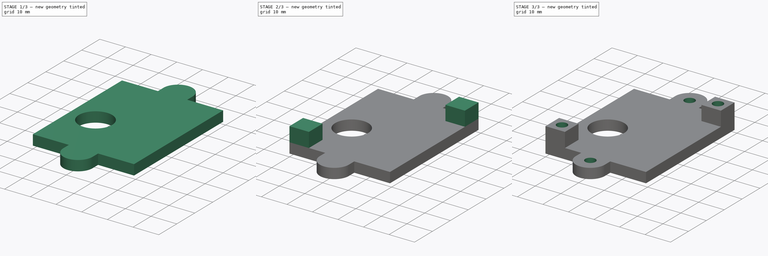
[diagram: build sequence overview — one tinted view per stage of 3, left to right]
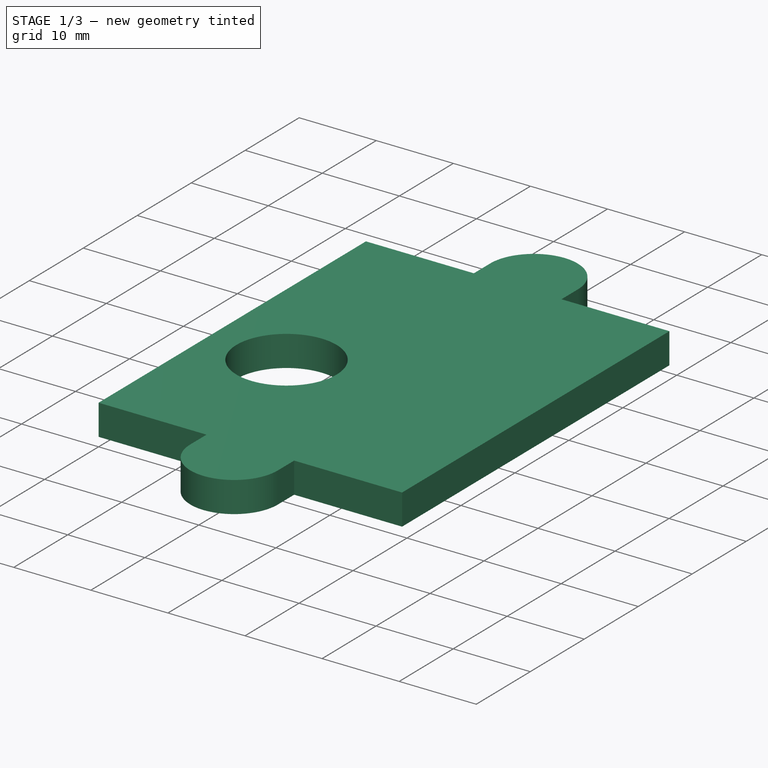
[diagram: stage 1 of 3 — iso view after this stage's code; geometry added in this stage tinted green]
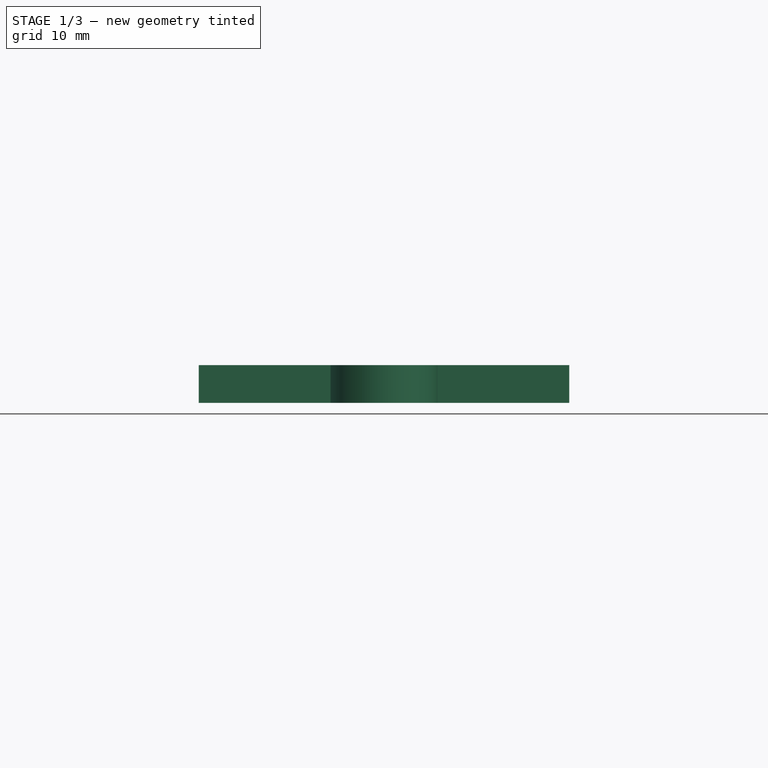
[diagram: stage 1 of 3 — front view after this stage's code; geometry added in this stage tinted green]
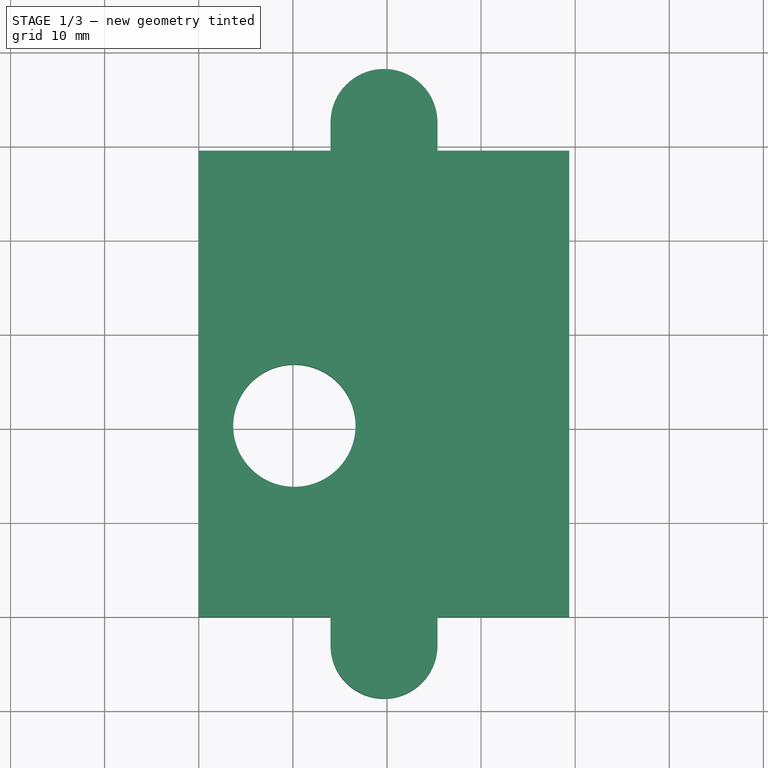
[diagram: stage 1 of 3 — top view after this stage's code; geometry added in this stage tinted green]
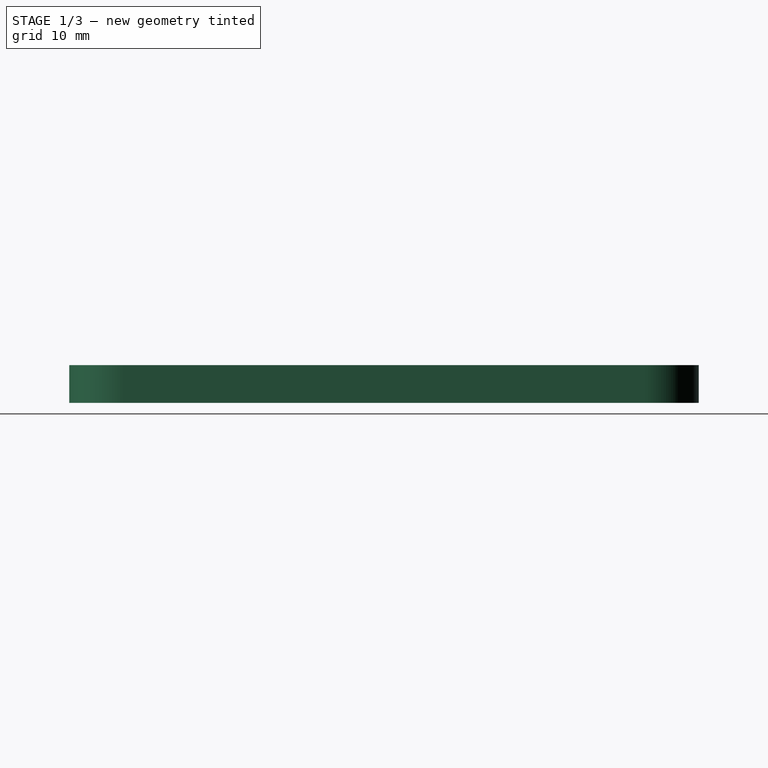
[diagram: stage 1 of 3 — right view after this stage's code; geometry added in this stage tinted green]
FCSTD DOCUMENT  (FreeCAD 0.19R)
Label: board_mount
License: All rights reserved
LicenseURL: http://en.wikipedia.org/wiki/All_rights_reserved
objects: Sketcher::SketchObject×5, PartDesign::Pocket×3, PartDesign::Pad×2, PartDesign::Body×1
note: 16 computed .brp shape members not serialized (recipe doc carries the construction recipe); baked Part::Feature solids carry a one-line shape summary decoded from their .brp

FEATURE [Sketcher::SketchObject] Sketch  label="base"
  FullyConstrained = true
  MapMode = 5
  Support = -> [XY_Plane]
  sketch-geometry (12):
    g0: LineSegment StartX=0 StartY=0 StartZ=0 EndX=0 EndY=49.53 EndZ=0
    g1: LineSegment StartX=0 StartY=49.53 StartZ=0 EndX=14 EndY=49.53 EndZ=0
    g2: LineSegment StartX=25.37 StartY=49.53 StartZ=0 EndX=39.37 EndY=49.53 EndZ=0
    g3: LineSegment StartX=39.37 StartY=49.53 StartZ=0 EndX=39.37 EndY=0 EndZ=0
    g4: LineSegment StartX=0 StartY=0 StartZ=0 EndX=14 EndY=0 EndZ=0
    g5: LineSegment StartX=39.37 StartY=0 StartZ=0 EndX=25.37 EndY=0 EndZ=0
    g6: LineSegment StartX=14 StartY=49.53 StartZ=0 EndX=14 EndY=52.53 EndZ=0
    g7: LineSegment StartX=25.37 StartY=49.53 StartZ=0 EndX=25.37 EndY=52.53 EndZ=0
    g8: LineSegment StartX=14 StartY=0 StartZ=0 EndX=14 EndY=-3 EndZ=0
    g9: LineSegment StartX=25.37 StartY=0 StartZ=0 EndX=25.37 EndY=-3 EndZ=0
    g10: ArcOfCircle CenterX=19.685 CenterY=-3.00003 CenterZ=0 NormalX=0 NormalY=0 NormalZ=1 AngleXU=0 Radius=5.685 StartAngle=3.14159 EndAngle=6.28319
    g11: ArcOfCircle CenterX=19.685 CenterY=52.53 CenterZ=0 NormalX=0 NormalY=0 NormalZ=1 AngleXU=0 Radius=5.685 StartAngle=0 EndAngle=3.14159
  constraints (37):
    c: Coincident(g0,g-1)
    c: PointOnObject(g0,g-2)
    c: Coincident(g1,g0)
    c: Horizontal(g1)
    c: Coincident(g3,g2)
    c: PointOnObject(g3,g-1)
    c: Vertical(g3)
    c: Coincident(g4,g0)
    c: PointOnObject(g4,g-1)
    c: Coincident(g5,g3)
    c: PointOnObject(g5,g-1)
    c: Coincident(g6,g1)
    c: Vertical(g6)
    c: Coincident(g7,g2)
    c: Coincident(g8,g4)
    c: Coincident(g9,g5)
    c: Coincident(g10,g8)
    c: Coincident(g10,g9)
    c: Coincident(g11,g6)
    c: Coincident(g11,g7)
    c: Horizontal(g2)
    c: Vertical(g7)
    c: DistanceY(g0,g0) = 49.53
    c: DistanceX(g0,g2) = 39.37
    c: Equal(g3,g0)
    c: Equal(g2,g5)
    c: Equal(g5,g4)
    c: Equal(g4,g1)
    c: Equal(g10,g11)
    c: Equal(g9,g8)
    c: Equal(g8,g7)
    c: Equal(g7,g6)
    c: Vertical(g8)
    c: Vertical(g9)
    c: DistanceX(g1,g1) = 14
    c: DistanceY(g8,g8) = 3
    c: Horizontal(g11,g6)
FEATURE [PartDesign::Pad] Pad
  Direction = (1,1,1)
  Length = 4
  Length2 = 100
  Profile = -> Sketch
  Type = 0
FEATURE [Sketcher::SketchObject] Sketch001  label="buzzer_hole"
  FullyConstrained = true
  MapMode = 5
  Placement = pos=(0,0,4) rot=(0,0,1;0rad)
  Support = -> [Pad]
  sketch-geometry (1):
    g0: Circle CenterX=10.16 CenterY=20.31 CenterZ=0 NormalX=0 NormalY=0 NormalZ=1 AngleXU=0 Radius=6.5
  constraints (3):
    c: Radius(g0) = 6.5
    c: DistanceX(g-1,g0) = 10.16
    c: DistanceY(g-1,g0) = 20.31
FEATURE [PartDesign::Pocket] Pocket
  BaseFeature = -> Pad
  Length = 5
  Length2 = 100
  Profile = -> Sketch001
  Type = 0
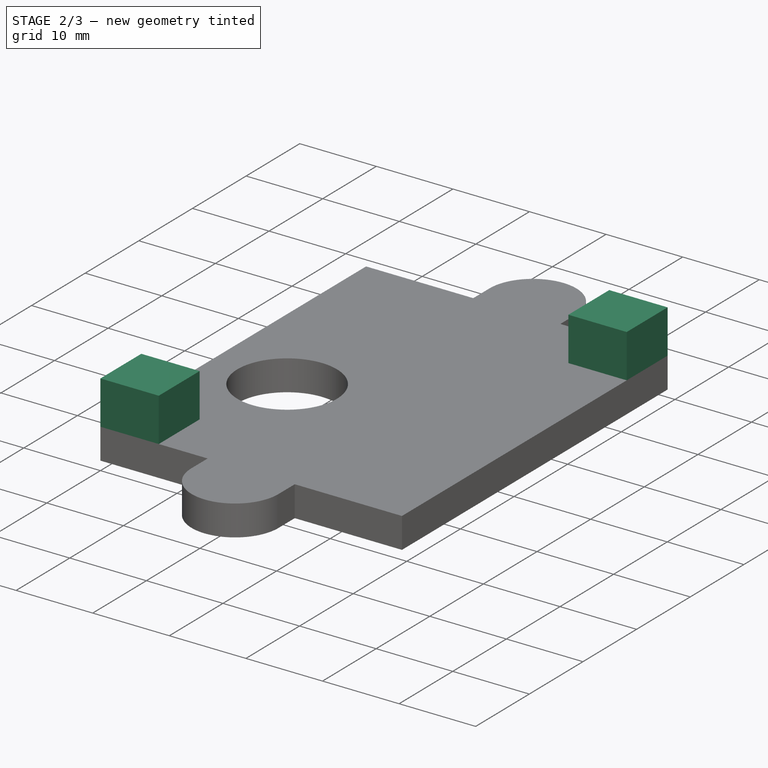
[diagram: stage 2 of 3 — iso view after this stage's code; geometry added in this stage tinted green]
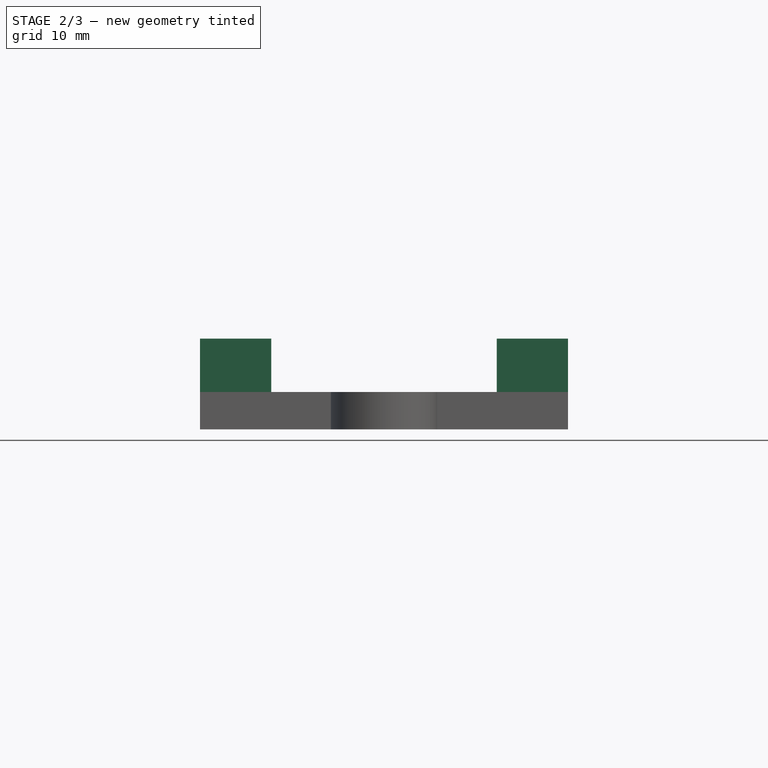
[diagram: stage 2 of 3 — front view after this stage's code; geometry added in this stage tinted green]
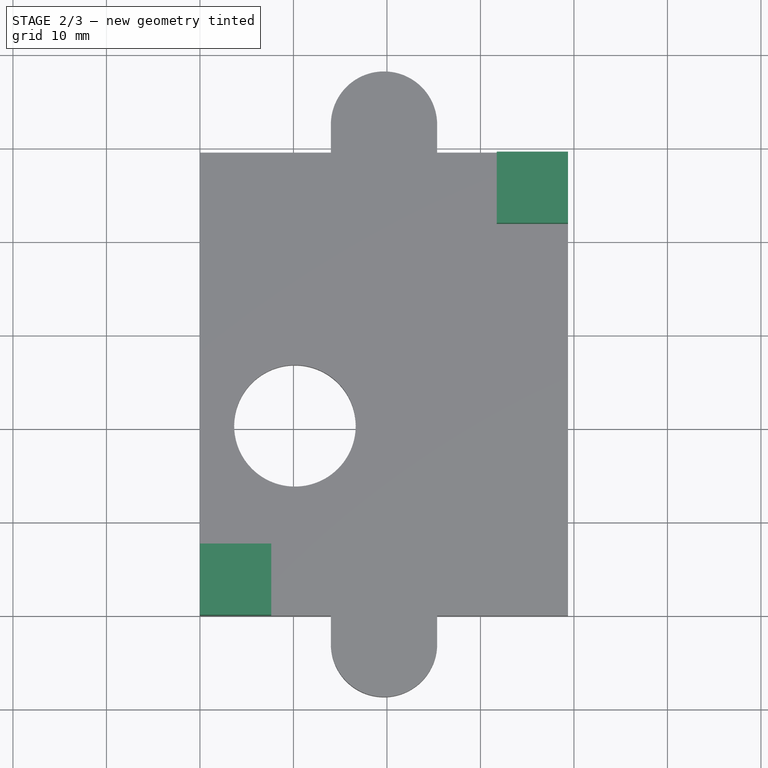
[diagram: stage 2 of 3 — top view after this stage's code; geometry added in this stage tinted green]
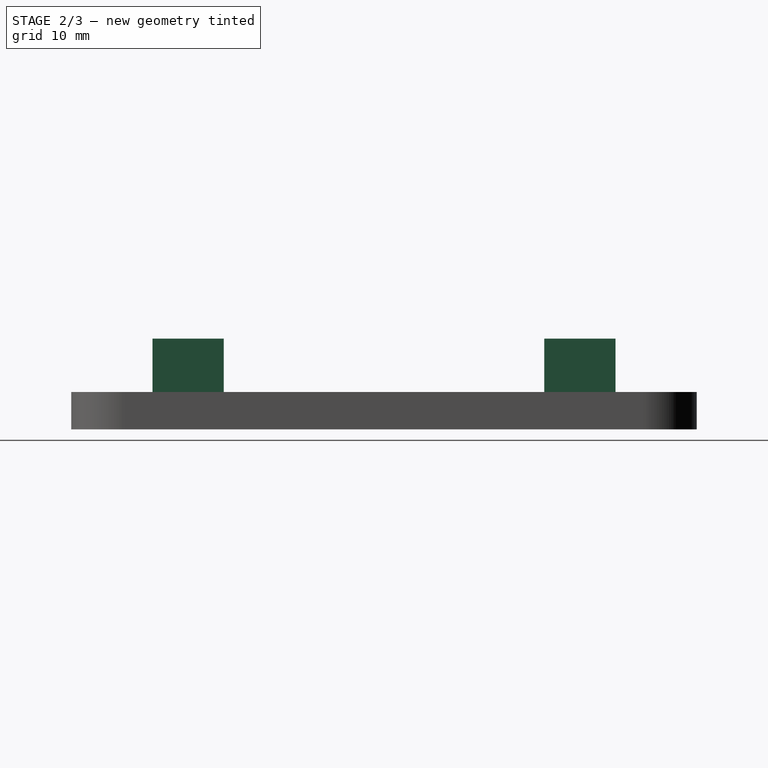
[diagram: stage 2 of 3 — right view after this stage's code; geometry added in this stage tinted green]
FEATURE [Sketcher::SketchObject] Sketch002
  FullyConstrained = true
  MapMode = 5
  Placement = pos=(0,0,4) rot=(0,0,1;0rad)
  Support = -> [Pocket]
  sketch-geometry (8):
    g0: LineSegment StartX=0 StartY=0 StartZ=0 EndX=7.62 EndY=0 EndZ=0
    g1: LineSegment StartX=7.62 StartY=0 StartZ=0 EndX=7.62 EndY=7.62 EndZ=0
    g2: LineSegment StartX=7.62 StartY=7.62 StartZ=0 EndX=0 EndY=7.62 EndZ=0
    g3: LineSegment StartX=0 StartY=7.62 StartZ=0 EndX=0 EndY=0 EndZ=0
    g4: LineSegment StartX=39.37 StartY=49.53 StartZ=0 EndX=31.75 EndY=49.53 EndZ=0
    g5: LineSegment StartX=31.75 StartY=49.53 StartZ=0 EndX=31.75 EndY=41.91 EndZ=0
    g6: LineSegment StartX=31.75 StartY=41.91 StartZ=0 EndX=39.37 EndY=41.91 EndZ=0
    g7: LineSegment StartX=39.37 StartY=41.91 StartZ=0 EndX=39.37 EndY=49.53 EndZ=0
  constraints (23):
    c: Coincident(g0,g1)
    c: Coincident(g1,g2)
    c: Coincident(g2,g3)
    c: Coincident(g3,g0)
    c: Horizontal(g0)
    c: Horizontal(g2)
    c: Vertical(g1)
    c: Vertical(g3)
    c: Coincident(g0,g-1)
    c: Coincident(g4,g5)
    c: Coincident(g5,g6)
    c: Coincident(g6,g7)
    c: Coincident(g7,g4)
    c: Horizontal(g4)
    c: Horizontal(g6)
    c: Vertical(g5)
    c: Vertical(g7)
    c: Equal(g2,g3)
    c: Equal(g0,g5)
    c: Equal(g4,g7)
    c: DistanceX(g0,g4) = 39.37
    c: DistanceY(g0,g4) = 49.53
    c: DistanceY(g3,g3) = 7.62
FEATURE [PartDesign::Pad] Pad001
  BaseFeature = -> Pocket
  Direction = (1,1,1)
  Length = 5.7
  Length2 = 100
  Profile = -> Sketch002
  Type = 0
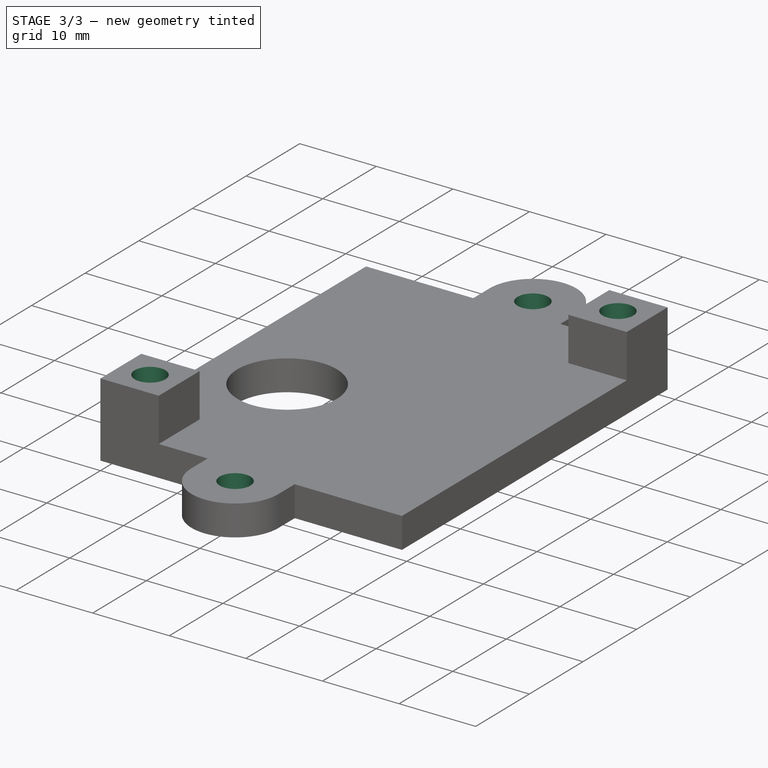
[diagram: stage 3 of 3 — iso view after this stage's code; geometry added in this stage tinted green]
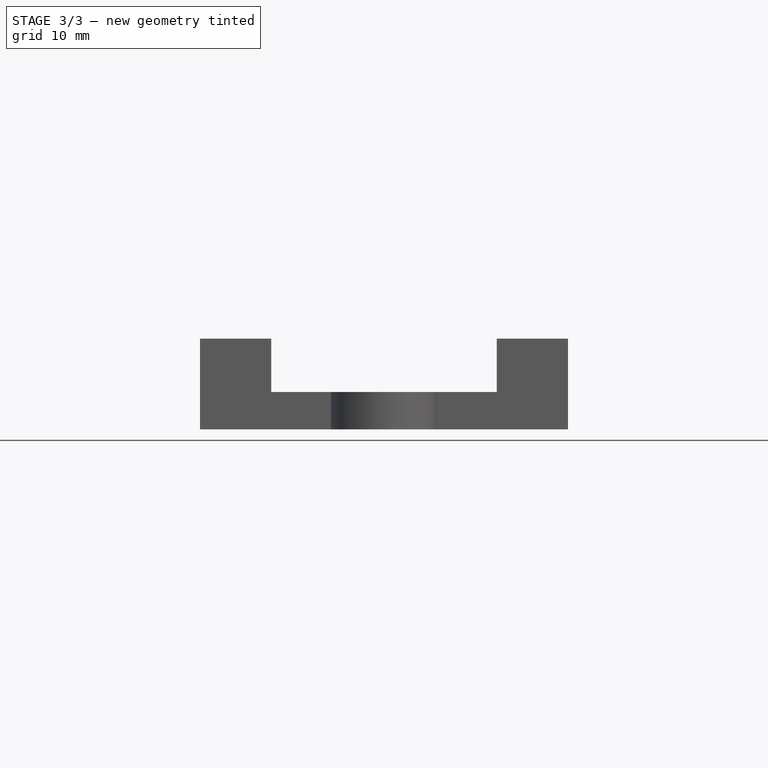
[diagram: stage 3 of 3 — front view after this stage's code; geometry added in this stage tinted green]
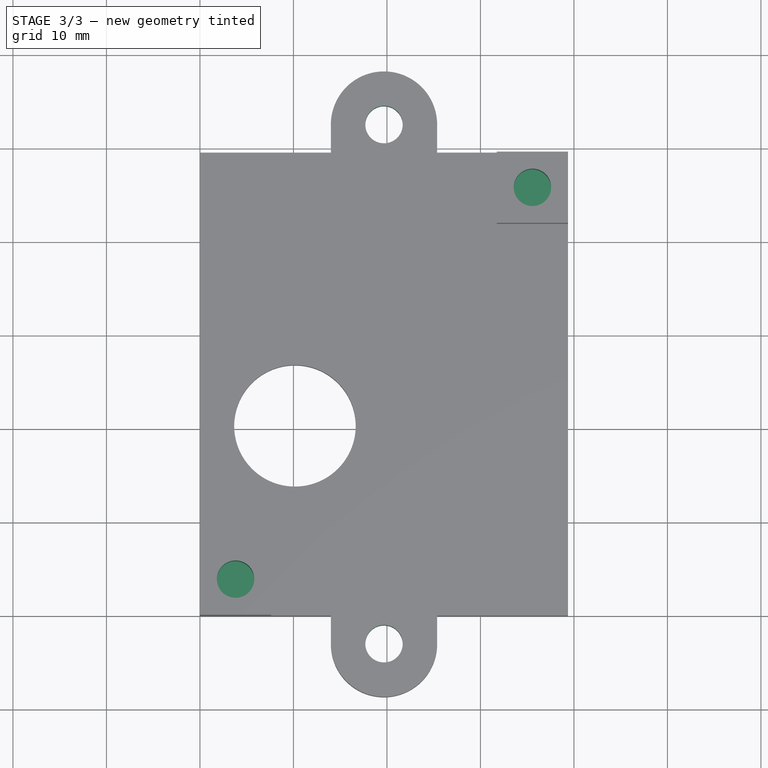
[diagram: stage 3 of 3 — top view after this stage's code; geometry added in this stage tinted green]
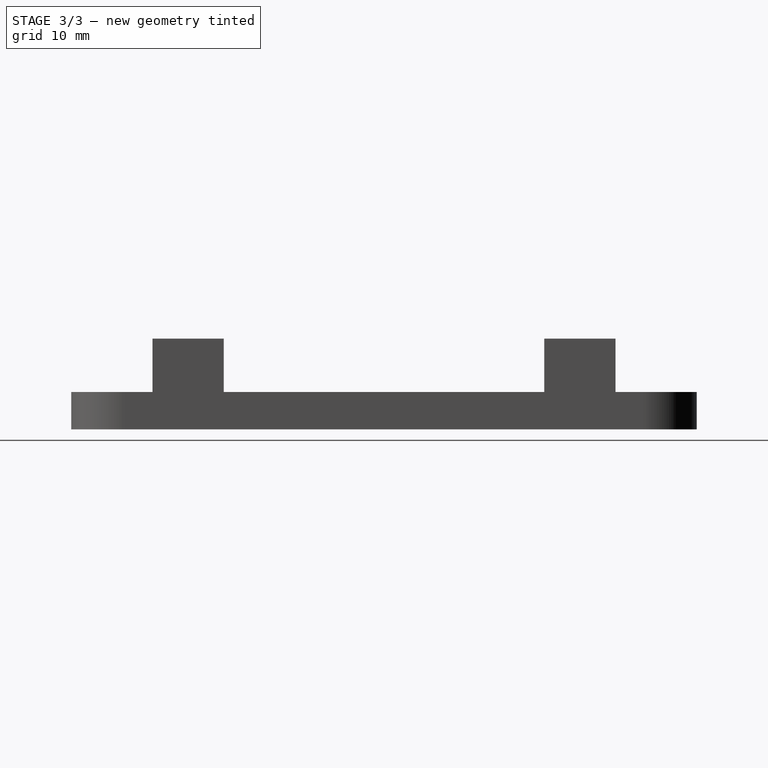
[diagram: stage 3 of 3 — right view after this stage's code; geometry added in this stage tinted green]
FEATURE [Sketcher::SketchObject] Sketch003  label="m3_bushings"
  ExternalGeometry = -> [Pad001]
  FullyConstrained = true
  MapMode = 5
  Placement = pos=(0,0,9.7) rot=(0,0,1;0rad)
  Support = -> [Pad001]
  sketch-geometry (2):
    g0: Circle CenterX=3.81 CenterY=3.81 CenterZ=0 NormalX=0 NormalY=0 NormalZ=1 AngleXU=0 Radius=2
    g1: Circle CenterX=35.56 CenterY=45.72 CenterZ=0 NormalX=0 NormalY=0 NormalZ=1 AngleXU=0 Radius=2
  constraints (6):
    c: Radius(g0) = 2
    c: DistanceX(g-1,g0) = 3.81
    c: DistanceY(g-1,g0) = 3.81
    c: Equal(g1,g0)
    c: DistanceX(g1,g-3) = 3.81
    c: DistanceY(g1,g-3) = 3.81
FEATURE [PartDesign::Pocket] Pocket001
  BaseFeature = -> Pad001
  Length = 5.7
  Length2 = 100
  Profile = -> Sketch003
  Type = 0
FEATURE [Sketcher::SketchObject] Sketch004  label="mounting_holes"
  ExternalGeometry = -> [Pocket001]
  FullyConstrained = true
  MapMode = 5
  Placement = pos=(0,0,4) rot=(0,0,1;0rad)
  Support = -> [Pocket001]
  sketch-geometry (2):
    g0: Circle CenterX=19.685 CenterY=-3.00003 CenterZ=0 NormalX=0 NormalY=0 NormalZ=1 AngleXU=0 Radius=2
    g1: Circle CenterX=19.685 CenterY=52.53 CenterZ=0 NormalX=0 NormalY=0 NormalZ=1 AngleXU=0 Radius=2
  constraints (4):
    c: Equal(g0,g1)
    c: Radius(g0) = 2
    c: Coincident(g0,g-4)
    c: Coincident(g1,g-3)
FEATURE [PartDesign::Pocket] Pocket002
  BaseFeature = -> Pocket001
  Length = 5
  Length2 = 100
  Profile = -> Sketch004
  Type = 0
FEATURE [PartDesign::Body] Body  label="board_mount"
  Group = -> [Sketch,Pad,Sketch001,Pocket,Sketch002,Pad001,Sketch003,Pocket001,Sketch004,Pocket002]
  Origin = -> Origin
  Tip = -> Pocket002
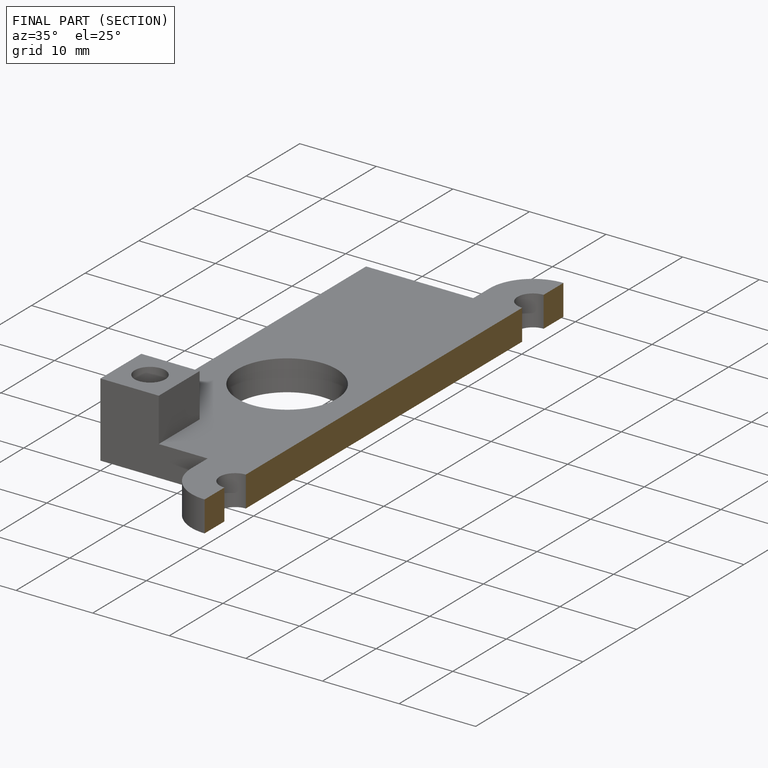
[diagram: finished part — half-section view (interior)]
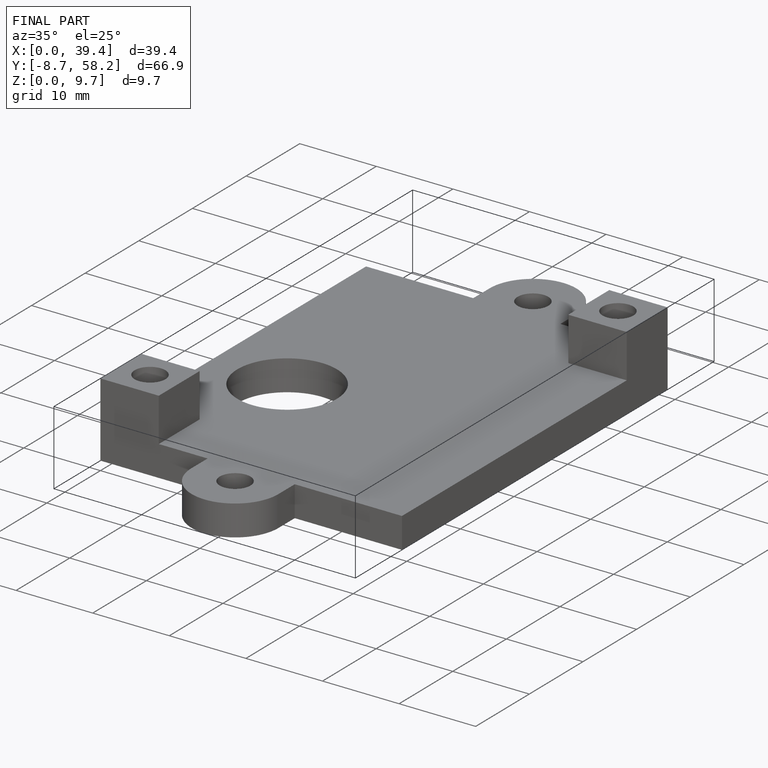
[diagram: finished part — iso view with bounding-box wireframe]
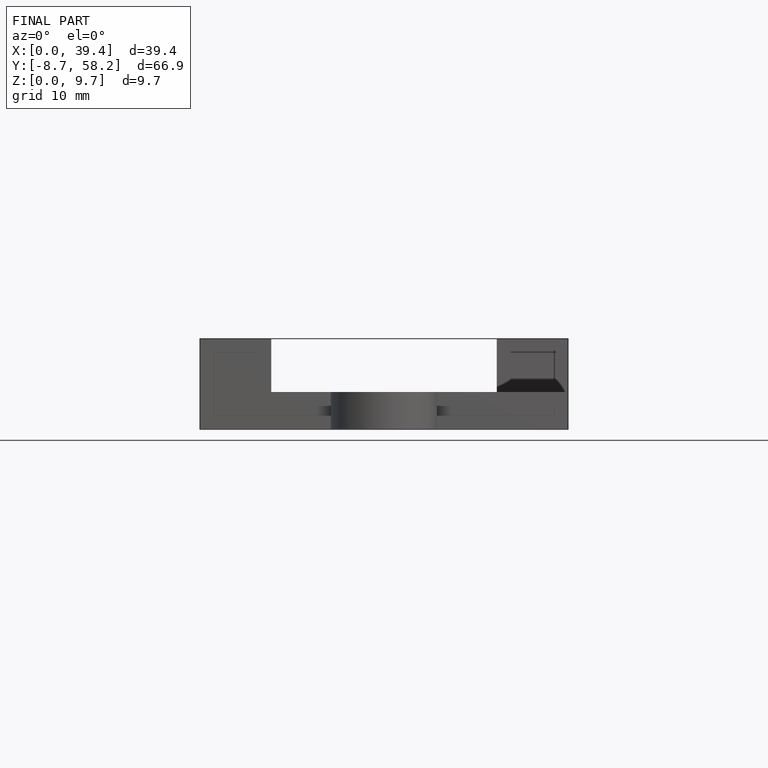
[diagram: finished part — front view with bounding-box wireframe]
